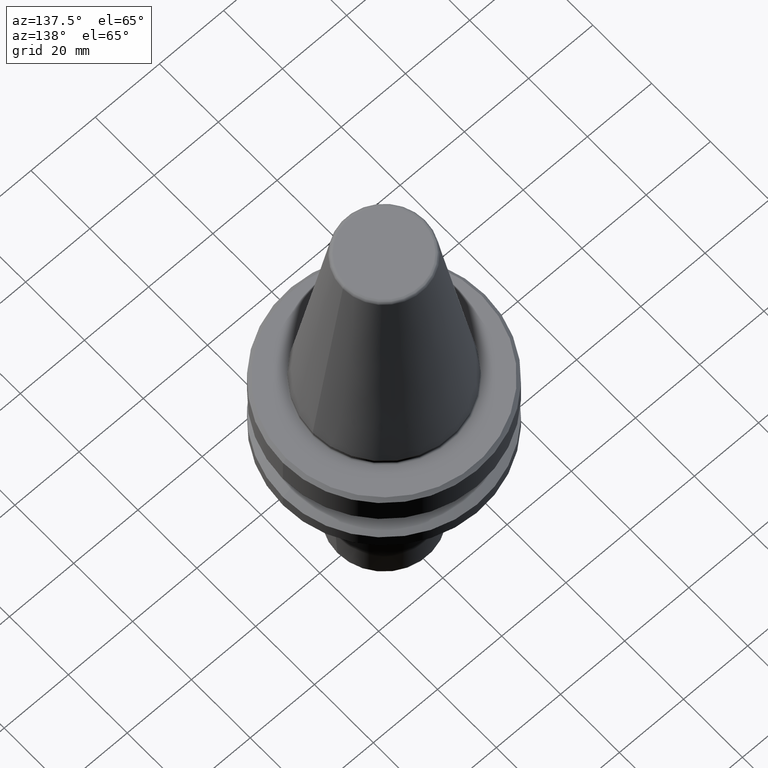
[diagram: clean part render]
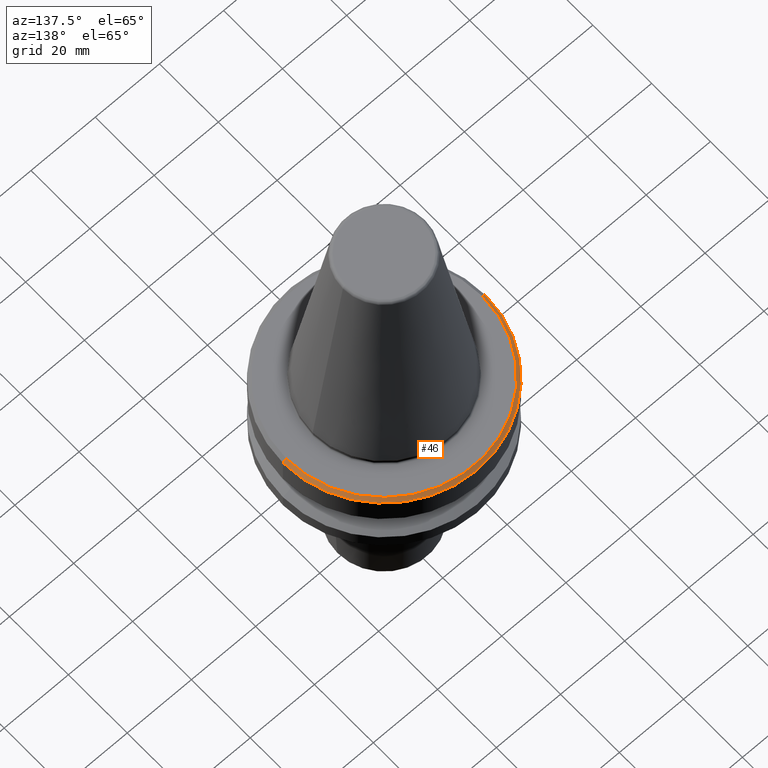
[diagram: same view with one face highlighted and labeled with its STEP entity id]
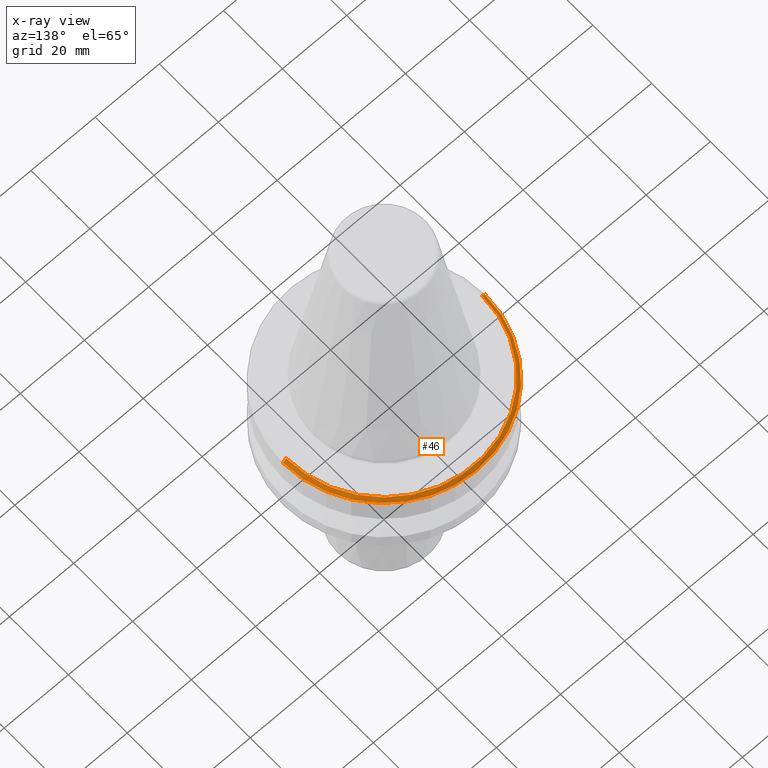
[diagram: x-ray of the same camera — body ghosted, the highlighted face saturated]
A machine part, auxiliary view. The second image highlights one B-rep face of the part: STEP entity #46.
The next image is the same camera in x-ray: the body ghosted, the highlighted face saturated — about 0% of this face is hidden behind the body in this view.
In plain terms, the highlighted conical surface has half-angle 45 deg.
Its self-contained STEP definition (entity closure, byte-faithful):
#28 = CIRCLE ( 'NONE', #713, 30.49999999999997200 ) ;
#46 = ADVANCED_FACE ( 'NONE', ( #552 ), #948, .T. ) ;
#133 = AXIS2_PLACEMENT_3D ( 'NONE', #825, #242, #430 ) ;
#180 = ORIENTED_EDGE ( 'NONE', *, *, #603, .T. ) ;
#215 = ORIENTED_EDGE ( 'NONE', *, *, #418, .F. ) ;
#238 = DIRECTION ( 'NONE',  ( -0.7071067811865474600, 0.0000000000000000000, -0.7071067811865475700 ) ) ;
#242 = DIRECTION ( 'NONE',  ( 0.0000000000000000000, 0.0000000000000000000, -1.000000000000000000 ) ) ;
#290 = DIRECTION ( 'NONE',  ( 0.7071067811865474600, 8.659560562354931600E-017, -0.7071067811865475700 ) ) ;
#314 = CIRCLE ( 'NONE', #1052, 31.50000000000008500 ) ;
#320 = EDGE_CURVE ( 'NONE', #556, #814, #605, .T. ) ;
#369 = CARTESIAN_POINT ( 'NONE',  ( 0.0000000000000000000, 0.0000000000000000000, -68.40000000000046000 ) ) ;
#418 = EDGE_CURVE ( 'NONE', #968, #556, #28, .T. ) ;
#430 = DIRECTION ( 'NONE',  ( -1.000000000000000000, 0.0000000000000000000, 0.0000000000000000000 ) ) ;
#552 = FACE_OUTER_BOUND ( 'NONE', #590, .T. ) ;
#556 = VERTEX_POINT ( 'NONE', #652 ) ;
#590 = EDGE_LOOP ( 'NONE', ( #215, #180, #744, #720 ) ) ;
#598 = DIRECTION ( 'NONE',  ( 1.000000000000000000, 0.0000000000000000000, 0.0000000000000000000 ) ) ;
#603 = EDGE_CURVE ( 'NONE', #968, #926, #753, .T. ) ;
#605 = LINE ( 'NONE', #654, #1042 ) ;
#652 = CARTESIAN_POINT ( 'NONE',  ( -30.49999999999997200, 0.0000000000000000000, -67.40000000000034700 ) ) ;
#654 = CARTESIAN_POINT ( 'NONE',  ( -30.49999999999997200, 0.0000000000000000000, -67.40000000000034700 ) ) ;
#681 = DIRECTION ( 'NONE',  ( 1.000000000000000000, 0.0000000000000000000, 0.0000000000000000000 ) ) ;
#695 = DIRECTION ( 'NONE',  ( -0.0000000000000000000, -0.0000000000000000000, 1.000000000000000000 ) ) ;
#713 = AXIS2_PLACEMENT_3D ( 'NONE', #1009, #838, #681 ) ;
#720 = ORIENTED_EDGE ( 'NONE', *, *, #320, .F. ) ;
#734 = CARTESIAN_POINT ( 'NONE',  ( 30.49999999999997200, 3.735172737399423600E-015, -67.40000000000034700 ) ) ;
#744 = ORIENTED_EDGE ( 'NONE', *, *, #888, .T. ) ;
#753 = LINE ( 'NONE', #734, #961 ) ;
#776 = CARTESIAN_POINT ( 'NONE',  ( -31.50000000000008500, 3.857637417314172900E-015, -68.40000000000046000 ) ) ;
#814 = VERTEX_POINT ( 'NONE', #776 ) ;
#825 = CARTESIAN_POINT ( 'NONE',  ( 0.0000000000000000000, 0.0000000000000000000, -67.40000000000034700 ) ) ;
#838 = DIRECTION ( 'NONE',  ( -0.0000000000000000000, -0.0000000000000000000, 1.000000000000000000 ) ) ;
#863 = CARTESIAN_POINT ( 'NONE',  ( 31.50000000000008500, 0.0000000000000000000, -68.40000000000046000 ) ) ;
#888 = EDGE_CURVE ( 'NONE', #926, #814, #314, .T. ) ;
#926 = VERTEX_POINT ( 'NONE', #863 ) ;
#948 = CONICAL_SURFACE ( 'NONE', #133, 30.49999999999997200, 0.7853981633974482800 ) ;
#961 = VECTOR ( 'NONE', #290, 1000.000000000000000 ) ;
#968 = VERTEX_POINT ( 'NONE', #1027 ) ;
#1009 = CARTESIAN_POINT ( 'NONE',  ( 0.0000000000000000000, 0.0000000000000000000, -67.40000000000034700 ) ) ;
#1027 = CARTESIAN_POINT ( 'NONE',  ( 30.49999999999997200, 3.796405077356798300E-015, -67.40000000000034700 ) ) ;
#1042 = VECTOR ( 'NONE', #238, 1000.000000000000000 ) ;
#1052 = AXIS2_PLACEMENT_3D ( 'NONE', #369, #695, #598 ) ;